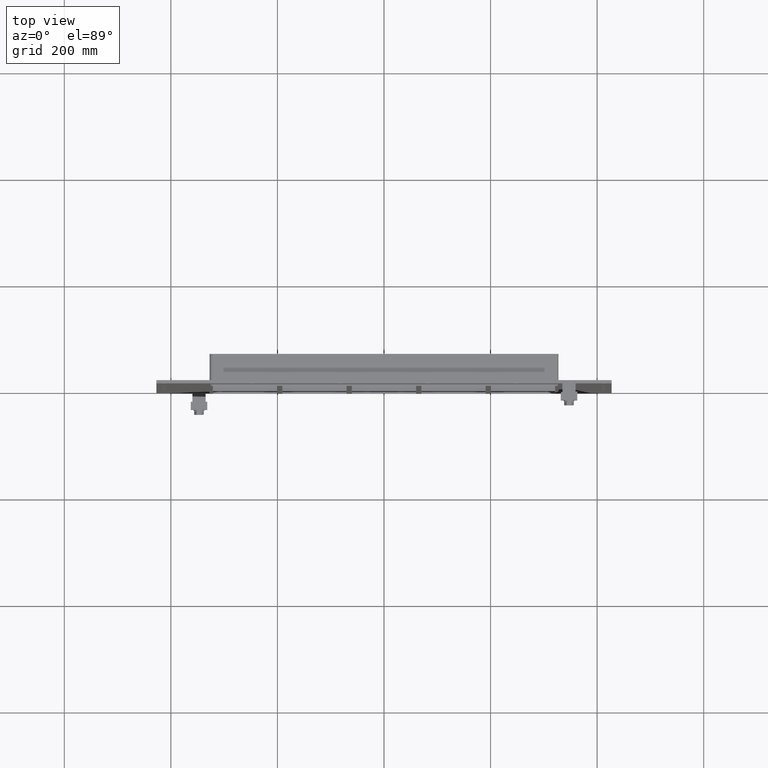
[diagram: clean part render]
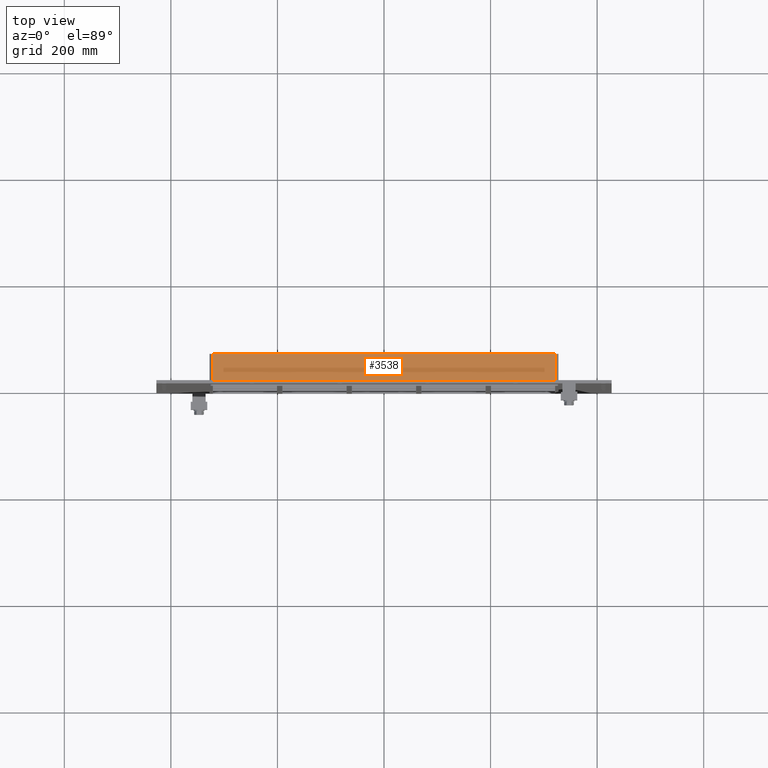
[diagram: same view with one face highlighted and labeled with its STEP entity id]
A machine part, top view. The second image highlights one B-rep face of the part: STEP entity #3538.
In plain terms, the highlighted planar face has unit normal (0, 0, 1).
Its self-contained STEP definition (entity closure, byte-faithful):
#1480=CARTESIAN_POINT('',(-321.25000000000011,57.0,435.00000000000006));
#1481=VERTEX_POINT('',#1480);
#1489=CARTESIAN_POINT('',(321.24999999999989,57.0,435.00000000000006));
#1490=VERTEX_POINT('',#1489);
#1491=CARTESIAN_POINT('',(-321.25000000000017,57.0,435.00000000000006));
#1492=DIRECTION('',(1.0,0.0,0.0));
#1493=VECTOR('',#1492,642.5);
#1494=LINE('',#1491,#1493);
#1495=EDGE_CURVE('',#1481,#1490,#1494,.T.);
#2971=CARTESIAN_POINT('',(-321.25000000000011,6.000000000000001,435.00000000000006));
#2972=VERTEX_POINT('',#2971);
#3022=CARTESIAN_POINT('',(321.24999999999989,6.000000000000001,435.00000000000006));
#3023=VERTEX_POINT('',#3022);
#3031=CARTESIAN_POINT('',(-321.25000000000017,6.000000000000001,435.00000000000006));
#3032=DIRECTION('',(1.0,0.0,0.0));
#3033=VECTOR('',#3032,642.5);
#3034=LINE('',#3031,#3033);
#3035=EDGE_CURVE('',#2972,#3023,#3034,.T.);
#3511=CARTESIAN_POINT('',(-321.25000000000011,6.000000000000001,435.00000000000006));
#3512=DIRECTION('',(0.0,1.0,0.0));
#3513=VECTOR('',#3512,51.0);
#3514=LINE('',#3511,#3513);
#3515=EDGE_CURVE('',#2972,#1481,#3514,.T.);
#3522=CARTESIAN_POINT('',(-327.25000000000011,0.0,435.00000000000006));
#3523=DIRECTION('',(0.0,0.0,1.0));
#3524=DIRECTION('',(1.0,0.0,0.0));
#3525=AXIS2_PLACEMENT_3D('',#3522,#3523,#3524);
#3526=PLANE('',#3525);
#3527=ORIENTED_EDGE('',*,*,#3035,.T.);
#3528=CARTESIAN_POINT('',(321.24999999999989,57.0,435.00000000000006));
#3529=DIRECTION('',(0.0,-1.0,0.0));
#3530=VECTOR('',#3529,51.0);
#3531=LINE('',#3528,#3530);
#3532=EDGE_CURVE('',#1490,#3023,#3531,.T.);
#3533=ORIENTED_EDGE('',*,*,#3532,.F.);
#3534=ORIENTED_EDGE('',*,*,#1495,.F.);
#3535=ORIENTED_EDGE('',*,*,#3515,.F.);
#3536=EDGE_LOOP('',(#3527,#3533,#3534,#3535));
#3537=FACE_OUTER_BOUND('',#3536,.T.);
#3538=ADVANCED_FACE('',(#3537),#3526,.T.);